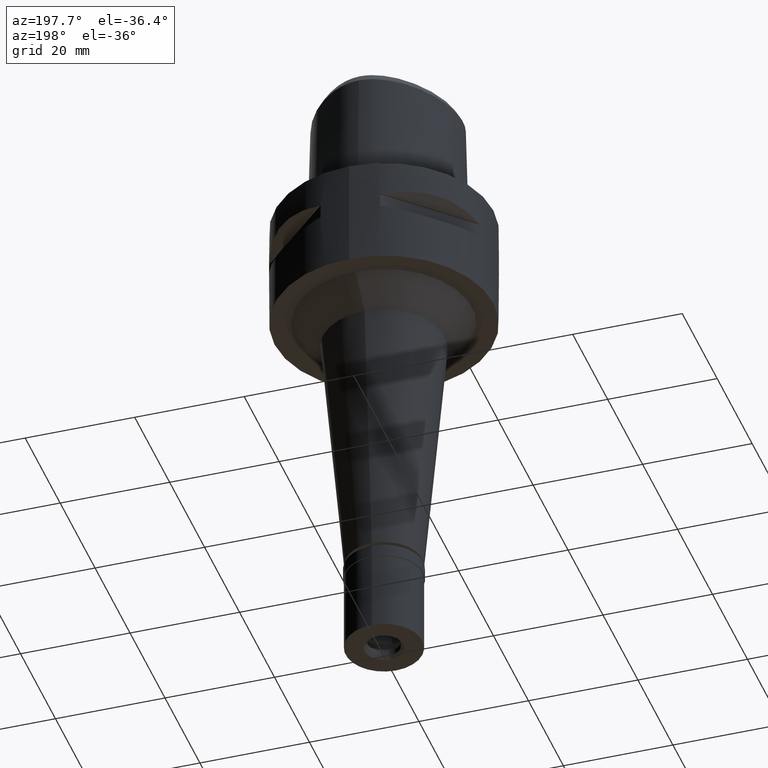
[diagram: clean part render]
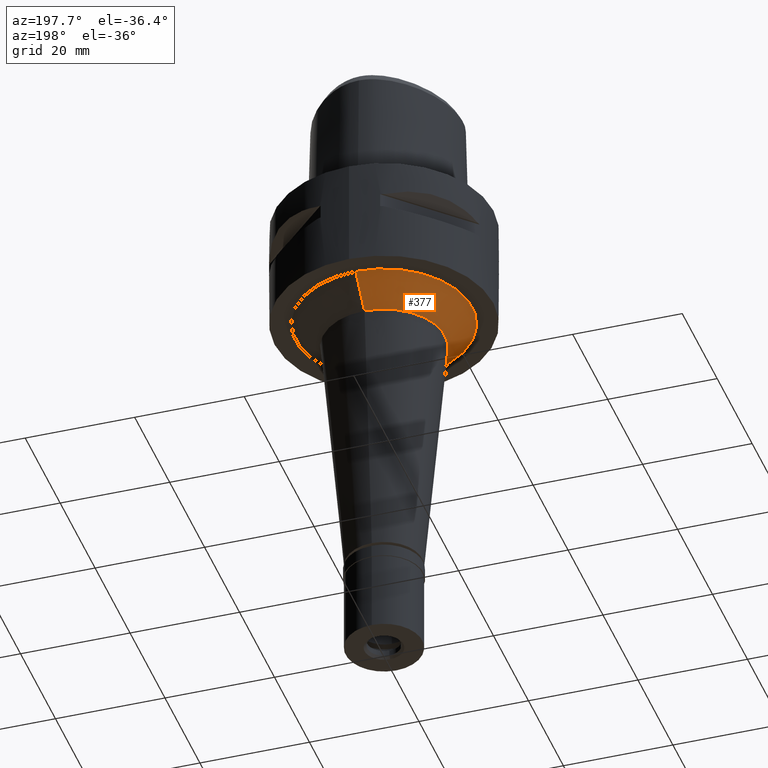
[diagram: same view with one face highlighted and labeled with its STEP entity id]
A machine part, auxiliary view. The second image highlights one B-rep face of the part: STEP entity #377.
In plain terms, the highlighted conical surface has half-angle 45 deg.
Its self-contained STEP definition (entity closure, byte-faithful):
#25 = ORIENTED_EDGE ( 'NONE', *, *, #3630, .F. ) ;
#51 = VERTEX_POINT ( 'NONE', #2740 ) ;
#339 = AXIS2_PLACEMENT_3D ( 'NONE', #2233, #2507, #3974 ) ;
#377 = ADVANCED_FACE ( 'NONE', ( #1813 ), #2486, .T. ) ;
#435 = CARTESIAN_POINT ( 'NONE',  ( 0.0000000000000000000, 16.13821378477999957, -20.00000000000000000 ) ) ;
#476 = EDGE_LOOP ( 'NONE', ( #25, #1363, #3564, #3790 ) ) ;
#740 = LINE ( 'NONE', #3967, #2495 ) ;
#772 = CARTESIAN_POINT ( 'NONE',  ( 0.0000000000000000000, 16.13821378477999957, -20.00000000000000000 ) ) ;
#829 = VERTEX_POINT ( 'NONE', #1470 ) ;
#907 = DIRECTION ( 'NONE',  ( 0.0000000000000000000, -1.000000000000000000, 0.0000000000000000000 ) ) ;
#996 = DIRECTION ( 'NONE',  ( 0.0000000000000000000, 0.0000000000000000000, -1.000000000000000000 ) ) ;
#1363 = ORIENTED_EDGE ( 'NONE', *, *, #2913, .F. ) ;
#1470 = CARTESIAN_POINT ( 'NONE',  ( 0.0000000000000000000, -11.13821378477999957, -25.00000000000000000 ) ) ;
#1529 = CIRCLE ( 'NONE', #3485, 16.13821378477999957 ) ;
#1804 = DIRECTION ( 'NONE',  ( 0.0000000000000000000, 0.7071067811866975639, -0.7071067811863974706 ) ) ;
#1813 = FACE_OUTER_BOUND ( 'NONE', #476, .T. ) ;
#1946 = CARTESIAN_POINT ( 'NONE',  ( 0.0000000000000000000, 0.0000000000000000000, -25.00000000000000000 ) ) ;
#2233 = CARTESIAN_POINT ( 'NONE',  ( 0.0000000000000000000, 0.0000000000000000000, -22.50000000000000000 ) ) ;
#2486 = CONICAL_SURFACE ( 'NONE', #339, 13.63821378477999957, 0.7853981633972997312 ) ;
#2495 = VECTOR ( 'NONE', #1804, 1000.000000000000114 ) ;
#2498 = AXIS2_PLACEMENT_3D ( 'NONE', #1946, #4049, #907 ) ;
#2507 = DIRECTION ( 'NONE',  ( 0.0000000000000000000, 0.0000000000000000000, 1.000000000000000000 ) ) ;
#2740 = CARTESIAN_POINT ( 'NONE',  ( 0.0000000000000000000, 11.13821378477999957, -25.00000000000000000 ) ) ;
#2794 = EDGE_CURVE ( 'NONE', #4483, #3590, #1529, .T. ) ;
#2840 = DIRECTION ( 'NONE',  ( 0.0000000000000000000, -1.000000000000000000, 0.0000000000000000000 ) ) ;
#2913 = EDGE_CURVE ( 'NONE', #4483, #829, #740, .T. ) ;
#3126 = CARTESIAN_POINT ( 'NONE',  ( 0.0000000000000000000, -16.13821378477999957, -20.00000000000000000 ) ) ;
#3411 = CIRCLE ( 'NONE', #2498, 11.13821378477999957 ) ;
#3485 = AXIS2_PLACEMENT_3D ( 'NONE', #3922, #996, #2840 ) ;
#3564 = ORIENTED_EDGE ( 'NONE', *, *, #2794, .T. ) ;
#3590 = VERTEX_POINT ( 'NONE', #772 ) ;
#3611 = EDGE_CURVE ( 'NONE', #3590, #51, #3631, .T. ) ;
#3630 = EDGE_CURVE ( 'NONE', #829, #51, #3411, .T. ) ;
#3631 = LINE ( 'NONE', #435, #3634 ) ;
#3634 = VECTOR ( 'NONE', #4355, 1000.000000000000114 ) ;
#3790 = ORIENTED_EDGE ( 'NONE', *, *, #3611, .T. ) ;
#3922 = CARTESIAN_POINT ( 'NONE',  ( 0.0000000000000000000, 0.0000000000000000000, -20.00000000000000000 ) ) ;
#3967 = CARTESIAN_POINT ( 'NONE',  ( 0.0000000000000000000, -16.13821378477999957, -20.00000000000000000 ) ) ;
#3974 = DIRECTION ( 'NONE',  ( 0.0000000000000000000, 1.000000000000000000, 0.0000000000000000000 ) ) ;
#4049 = DIRECTION ( 'NONE',  ( 0.0000000000000000000, 0.0000000000000000000, -1.000000000000000000 ) ) ;
#4355 = DIRECTION ( 'NONE',  ( 0.0000000000000000000, -0.7071067811866975639, -0.7071067811863974706 ) ) ;
#4483 = VERTEX_POINT ( 'NONE', #3126 ) ;